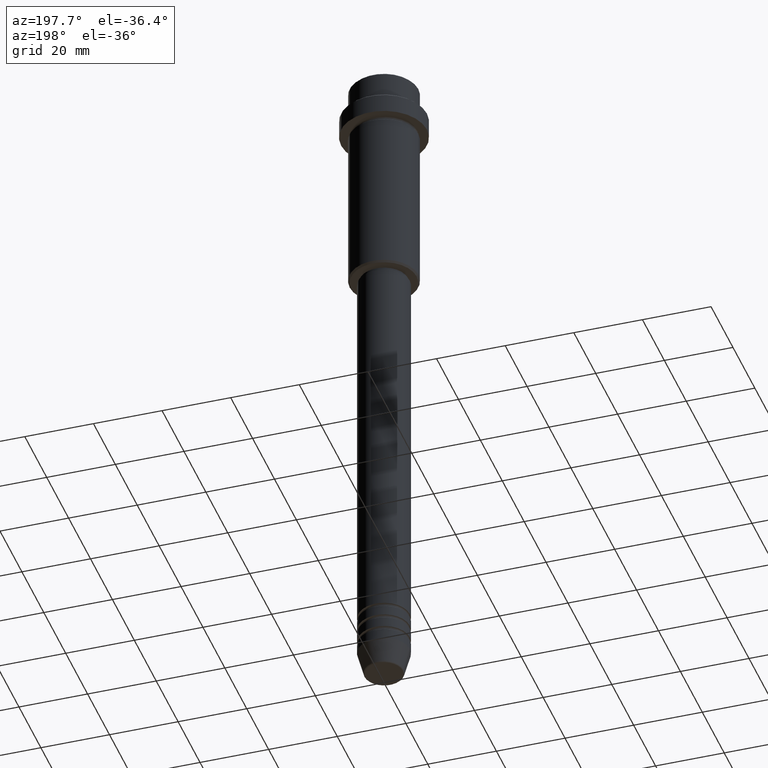
[diagram: clean part render]
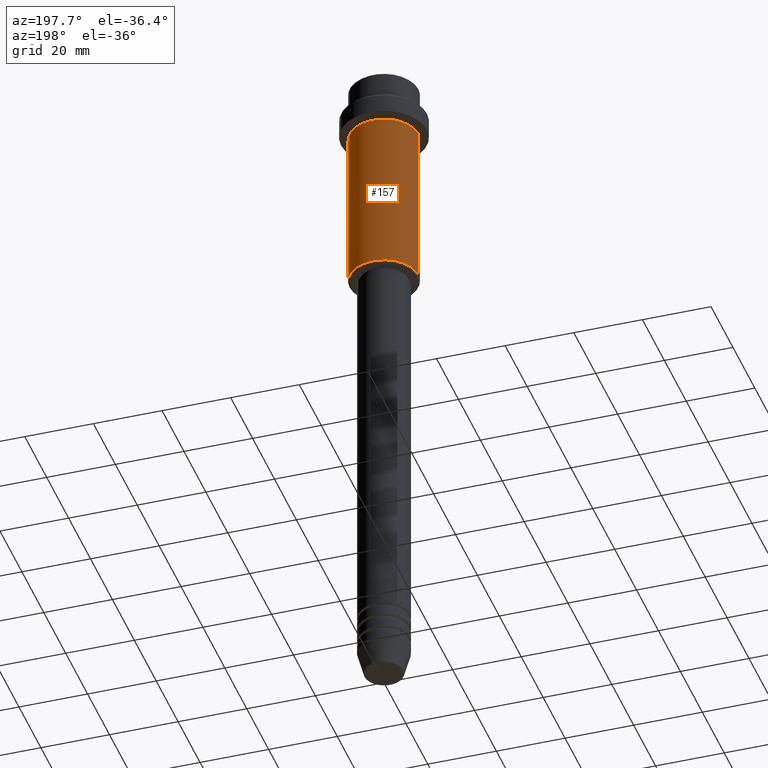
[diagram: same view with one face highlighted and labeled with its STEP entity id]
A machine part, auxiliary view. The second image highlights one B-rep face of the part: STEP entity #157.
In plain terms, the highlighted cylindrical surface (edge-blend (fillet) strip) has radius 10 mm, axis along (-0, -0, 1).
Its self-contained STEP definition (entity closure, byte-faithful):
#28 = VERTEX_POINT ( 'NONE', #427 ) ;
#154 = AXIS2_PLACEMENT_3D ( 'NONE', #466, #906, #1328 ) ;
#157 = ADVANCED_FACE ( 'NONE', ( #268 ), #699, .T. ) ;
#185 = DIRECTION ( 'NONE',  ( -0.000000000000000000, -0.000000000000000000, 1.000000000000000000 ) ) ;
#236 = DIRECTION ( 'NONE',  ( -0.000000000000000000, -0.000000000000000000, 1.000000000000000000 ) ) ;
#244 = AXIS2_PLACEMENT_3D ( 'NONE', #1233, #236, #780 ) ;
#268 = FACE_OUTER_BOUND ( 'NONE', #837, .T. ) ;
#279 = DIRECTION ( 'NONE',  ( 1.000000000000000000, 0.000000000000000000, 0.000000000000000000 ) ) ;
#293 = ORIENTED_EDGE ( 'NONE', *, *, #550, .T. ) ;
#311 = LINE ( 'NONE', #328, #1111 ) ;
#328 = CARTESIAN_POINT ( 'NONE',  ( 9.999999999999998224, 0.000000000000000000, 0.000000000000000000 ) ) ;
#391 = CARTESIAN_POINT ( 'NONE',  ( -9.999999999999998224, 1.224646799147353059E-15, 0.000000000000000000 ) ) ;
#427 = CARTESIAN_POINT ( 'NONE',  ( -9.999999999999998224, 1.224646799147353059E-15, -64.50000000000000000 ) ) ;
#457 = CARTESIAN_POINT ( 'NONE',  ( 9.999999999999998224, 0.000000000000000000, -64.50000000000000000 ) ) ;
#466 = CARTESIAN_POINT ( 'NONE',  ( 0.000000000000000000, 0.000000000000000000, 0.000000000000000000 ) ) ;
#538 = AXIS2_PLACEMENT_3D ( 'NONE', #1037, #946, #279 ) ;
#546 = ORIENTED_EDGE ( 'NONE', *, *, #1183, .T. ) ;
#550 = EDGE_CURVE ( 'NONE', #936, #28, #973, .T. ) ;
#579 = VERTEX_POINT ( 'NONE', #680 ) ;
#629 = ORIENTED_EDGE ( 'NONE', *, *, #1125, .F. ) ;
#680 = CARTESIAN_POINT ( 'NONE',  ( 9.999999999999998224, 0.000000000000000000, -16.00000000000000000 ) ) ;
#699 = CYLINDRICAL_SURFACE ( 'NONE', #154, 9.999999999999998224 ) ;
#780 = DIRECTION ( 'NONE',  ( -1.000000000000000000, 0.000000000000000000, 0.000000000000000000 ) ) ;
#819 = EDGE_CURVE ( 'NONE', #936, #579, #311, .T. ) ;
#837 = EDGE_LOOP ( 'NONE', ( #293, #546, #629, #1144 ) ) ;
#862 = DIRECTION ( 'NONE',  ( -0.000000000000000000, -0.000000000000000000, 1.000000000000000000 ) ) ;
#906 = DIRECTION ( 'NONE',  ( -0.000000000000000000, -0.000000000000000000, 1.000000000000000000 ) ) ;
#930 = LINE ( 'NONE', #391, #979 ) ;
#936 = VERTEX_POINT ( 'NONE', #457 ) ;
#946 = DIRECTION ( 'NONE',  ( -0.000000000000000000, -0.000000000000000000, 1.000000000000000000 ) ) ;
#972 = VERTEX_POINT ( 'NONE', #1104 ) ;
#973 = CIRCLE ( 'NONE', #244, 9.999999999999998224 ) ;
#979 = VECTOR ( 'NONE', #185, 1000.000000000000000 ) ;
#1037 = CARTESIAN_POINT ( 'NONE',  ( 0.000000000000000000, 0.000000000000000000, -16.00000000000000000 ) ) ;
#1104 = CARTESIAN_POINT ( 'NONE',  ( -9.999999999999998224, 1.224646799147353059E-15, -16.00000000000000000 ) ) ;
#1111 = VECTOR ( 'NONE', #862, 1000.000000000000000 ) ;
#1125 = EDGE_CURVE ( 'NONE', #579, #972, #1244, .T. ) ;
#1144 = ORIENTED_EDGE ( 'NONE', *, *, #819, .F. ) ;
#1183 = EDGE_CURVE ( 'NONE', #28, #972, #930, .T. ) ;
#1233 = CARTESIAN_POINT ( 'NONE',  ( 0.000000000000000000, 0.000000000000000000, -64.50000000000000000 ) ) ;
#1244 = CIRCLE ( 'NONE', #538, 9.999999999999998224 ) ;
#1328 = DIRECTION ( 'NONE',  ( 1.000000000000000000, 0.000000000000000000, 0.000000000000000000 ) ) ;